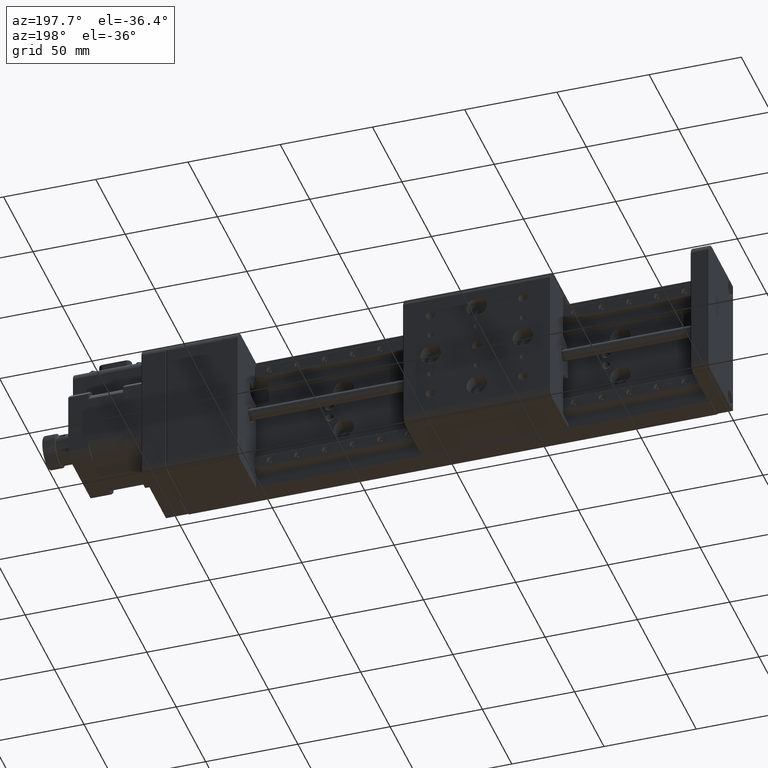
[diagram: clean part render]
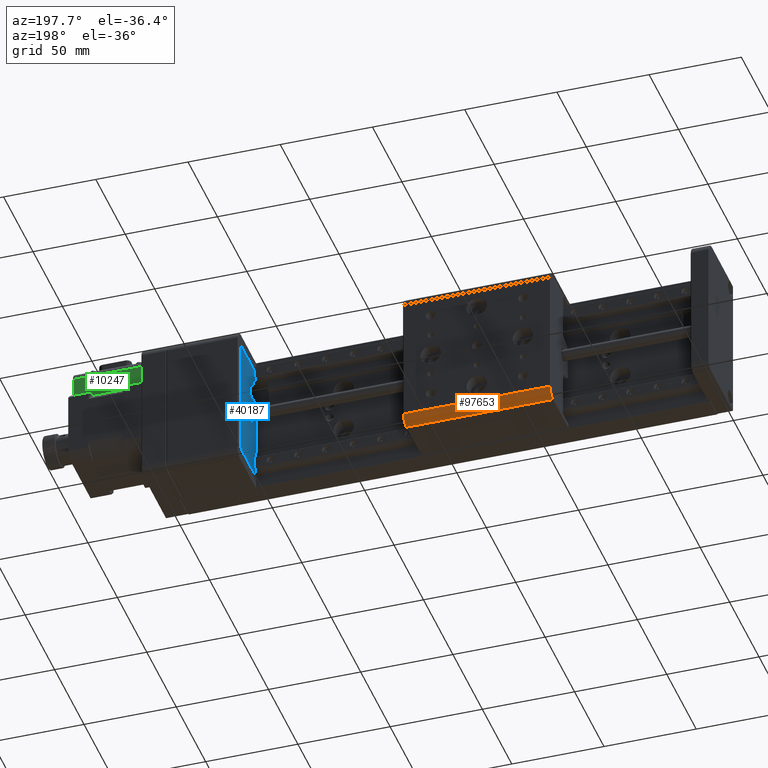
[diagram: same view with three faces highlighted in distinct colors, each labeled with its STEP entity id]
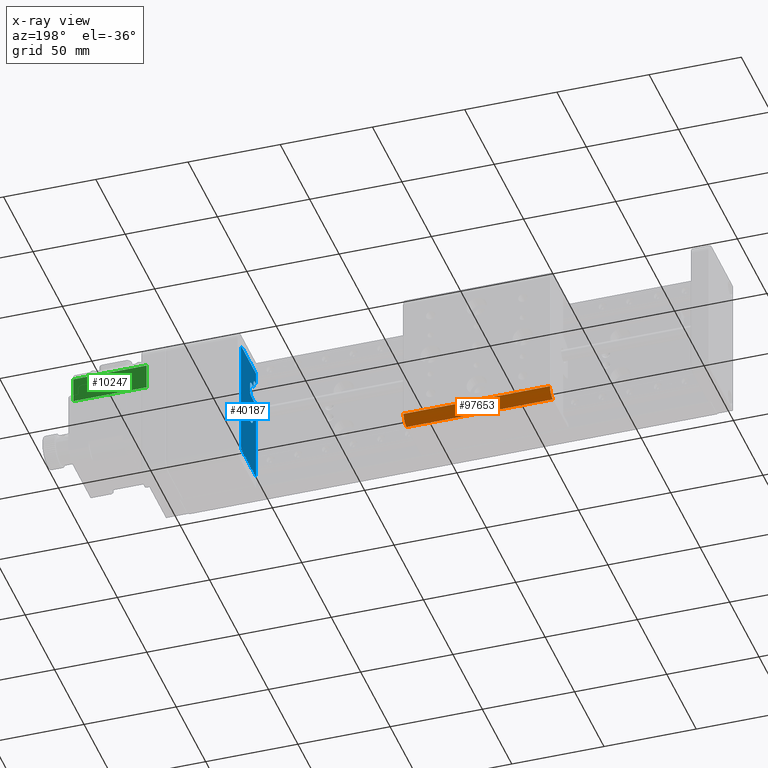
[diagram: x-ray of the same camera — body ghosted, the three highlighted faces saturated]
A machine part, auxiliary view with three faces highlighted in distinct colors.
The next image is the same camera in x-ray (body ghosted, the three faces saturated) — at least one of them is partly hidden behind the body in this view.
Their STEP definitions:

[orange] entity #97653 — the highlighted cylindrical surface (edge-blend (fillet) strip) has radius 5 mm, axis along (-1, -0, -0).
#374 = VERTEX_POINT ( 'NONE', #119018 ) ;
#8022 = CARTESIAN_POINT ( 'NONE',  ( 85.62080192617239000, 38.50000000000022000, -74.99999999999970200 ) ) ;
#19262 = EDGE_CURVE ( 'NONE', #374, #130264, #74265, .T. ) ;
#20106 = DIRECTION ( 'NONE',  ( 1.000000000000000000, 0.0000000000000000000, 0.0000000000000000000 ) ) ;
#23222 = VECTOR ( 'NONE', #128869, 1000.000000000000000 ) ;
#27548 = VECTOR ( 'NONE', #20106, 1000.000000000000000 ) ;
#31593 = DIRECTION ( 'NONE',  ( 1.000000000000000000, 0.0000000000000000000, 0.0000000000000000000 ) ) ;
#33930 = VERTEX_POINT ( 'NONE', #49349 ) ;
#34689 = ORIENTED_EDGE ( 'NONE', *, *, #130461, .T. ) ;
#37692 = CYLINDRICAL_SURFACE ( 'NONE', #108930, 4.999999999999997300 ) ;
#37864 = EDGE_CURVE ( 'NONE', #94270, #33930, #133591, .T. ) ;
#42780 = CIRCLE ( 'NONE', #118075, 4.999999999999997300 ) ;
#49349 = CARTESIAN_POINT ( 'NONE',  ( 85.62080192617239000, 43.50000000000022000, -74.99999999999970200 ) ) ;
#59646 = CARTESIAN_POINT ( 'NONE',  ( 85.32080192617236500, 38.50000000000022000, -74.99999999999970200 ) ) ;
#63565 = FACE_OUTER_BOUND ( 'NONE', #77543, .T. ) ;
#64017 = CARTESIAN_POINT ( 'NONE',  ( 165.3208019261723800, 38.50000000000022000, -79.99999999999970200 ) ) ;
#70733 = DIRECTION ( 'NONE',  ( -1.000000000000000000, -0.0000000000000000000, -0.0000000000000000000 ) ) ;
#72720 = CARTESIAN_POINT ( 'NONE',  ( 165.0208019261723700, 38.50000000000022000, -79.99999999999970200 ) ) ;
#74080 = CARTESIAN_POINT ( 'NONE',  ( 165.0208019261723700, 43.50000000000022000, -74.99999999999970200 ) ) ;
#74265 = LINE ( 'NONE', #64017, #27548 ) ;
#77049 = CARTESIAN_POINT ( 'NONE',  ( 165.0208019261723700, 38.50000000000022000, -74.99999999999970200 ) ) ;
#77543 = EDGE_LOOP ( 'NONE', ( #79490, #34689, #125054, #106625 ) ) ;
#79490 = ORIENTED_EDGE ( 'NONE', *, *, #19262, .F. ) ;
#86718 = DIRECTION ( 'NONE',  ( 0.0000000000000000000, -1.000000000000000000, 0.0000000000000000000 ) ) ;
#94270 = VERTEX_POINT ( 'NONE', #74080 ) ;
#97653 = ADVANCED_FACE ( 'NONE', ( #63565 ), #37692, .T. ) ;
#98279 = CIRCLE ( 'NONE', #114690, 4.999999999999997300 ) ;
#104011 = DIRECTION ( 'NONE',  ( 0.0000000000000000000, 1.000000000000000000, 0.0000000000000000000 ) ) ;
#106265 = CARTESIAN_POINT ( 'NONE',  ( 85.32080192617236500, 43.50000000000022000, -74.99999999999970200 ) ) ;
#106625 = ORIENTED_EDGE ( 'NONE', *, *, #135036, .T. ) ;
#108930 = AXIS2_PLACEMENT_3D ( 'NONE', #59646, #70733, #104011 ) ;
#110237 = DIRECTION ( 'NONE',  ( 0.0000000000000000000, 1.000000000000000000, 0.0000000000000000000 ) ) ;
#114690 = AXIS2_PLACEMENT_3D ( 'NONE', #8022, #31593, #86718 ) ;
#118075 = AXIS2_PLACEMENT_3D ( 'NONE', #77049, #120407, #110237 ) ;
#119018 = CARTESIAN_POINT ( 'NONE',  ( 85.62080192617239000, 38.50000000000022000, -79.99999999999970200 ) ) ;
#120407 = DIRECTION ( 'NONE',  ( -1.000000000000000000, -0.0000000000000000000, -0.0000000000000000000 ) ) ;
#125054 = ORIENTED_EDGE ( 'NONE', *, *, #37864, .F. ) ;
#128869 = DIRECTION ( 'NONE',  ( -1.000000000000000000, -0.0000000000000000000, -0.0000000000000000000 ) ) ;
#130264 = VERTEX_POINT ( 'NONE', #72720 ) ;
#130461 = EDGE_CURVE ( 'NONE', #374, #33930, #98279, .T. ) ;
#133591 = LINE ( 'NONE', #106265, #23222 ) ;
#135036 = EDGE_CURVE ( 'NONE', #94270, #130264, #42780, .T. ) ;

[blue] entity #40187 — the highlighted planar face has unit normal (1, 0, 0).
#743 = DIRECTION ( 'NONE',  ( 1.000000000000000000, 0.0000000000000000000, 0.0000000000000000000 ) ) ;
#2928 = CARTESIAN_POINT ( 'NONE',  ( 255.0000000000000000, 12.00000000000000000, -72.99999999999998600 ) ) ;
#4087 = CARTESIAN_POINT ( 'NONE',  ( 255.0000000000000000, 38.00000000000000000, -70.99999999999998600 ) ) ;
#4131 = CARTESIAN_POINT ( 'NONE',  ( 255.0000000000000000, 36.00000000000000700, -70.99999999999998600 ) ) ;
#5140 = AXIS2_PLACEMENT_3D ( 'NONE', #43305, #97387, #30809 ) ;
#6081 = CIRCLE ( 'NONE', #25579, 2.299999999999996300 ) ;
#6808 = CIRCLE ( 'NONE', #118384, 4.299999999999998000 ) ;
#7494 = EDGE_LOOP ( 'NONE', ( #137505, #13790 ) ) ;
#10109 = VERTEX_POINT ( 'NONE', #82693 ) ;
#10212 = DIRECTION ( 'NONE',  ( 0.0000000000000000000, 0.0000000000000000000, -1.000000000000000000 ) ) ;
#10641 = VECTOR ( 'NONE', #42216, 1000.000000000000000 ) ;
#12166 = ORIENTED_EDGE ( 'NONE', *, *, #101148, .T. ) ;
#13790 = ORIENTED_EDGE ( 'NONE', *, *, #26496, .T. ) ;
#14921 = DIRECTION ( 'NONE',  ( 0.0000000000000000000, 1.000000000000000000, -3.469446951953613700E-016 ) ) ;
#15143 = EDGE_CURVE ( 'NONE', #20278, #91962, #112420, .T. ) ;
#17108 = CARTESIAN_POINT ( 'NONE',  ( 255.0000000000000000, 38.00000000000000000, -72.99999999999998600 ) ) ;
#17250 = CIRCLE ( 'NONE', #5140, 2.000000000000000000 ) ;
#17642 = CARTESIAN_POINT ( 'NONE',  ( 255.0000000000000000, 20.00000000000000000, -18.69999999999999200 ) ) ;
#17825 = VERTEX_POINT ( 'NONE', #116147 ) ;
#19202 = VERTEX_POINT ( 'NONE', #139245 ) ;
#19364 = DIRECTION ( 'NONE',  ( 1.000000000000000000, 0.0000000000000000000, 0.0000000000000000000 ) ) ;
#20278 = VERTEX_POINT ( 'NONE', #102725 ) ;
#21411 = DIRECTION ( 'NONE',  ( 0.0000000000000000000, 0.0000000000000000000, 1.000000000000000000 ) ) ;
#22923 = EDGE_CURVE ( 'NONE', #28128, #39271, #6081, .T. ) ;
#24788 = VECTOR ( 'NONE', #126463, 1000.000000000000000 ) ;
#25579 = AXIS2_PLACEMENT_3D ( 'NONE', #101376, #35196, #69502 ) ;
#26190 = CARTESIAN_POINT ( 'NONE',  ( 255.0000000000000000, 12.00000000000000000, -72.99999999999998600 ) ) ;
#26476 = DIRECTION ( 'NONE',  ( 0.0000000000000000000, 0.0000000000000000000, -1.000000000000000000 ) ) ;
#26496 = EDGE_CURVE ( 'NONE', #91962, #20278, #6808, .T. ) ;
#26700 = EDGE_CURVE ( 'NONE', #10109, #77042, #118950, .T. ) ;
#27106 = VECTOR ( 'NONE', #67024, 1000.000000000000000 ) ;
#27457 = CARTESIAN_POINT ( 'NONE',  ( 255.0000000000000000, 22.30000000000000100, -39.99999999999998600 ) ) ;
#27589 = EDGE_CURVE ( 'NONE', #39271, #90864, #77060, .T. ) ;
#28128 = VERTEX_POINT ( 'NONE', #129044 ) ;
#28425 = ORIENTED_EDGE ( 'NONE', *, *, #26700, .T. ) ;
#28953 = EDGE_LOOP ( 'NONE', ( #44693, #92099, #28964, #12166, #125233, #28425, #113071, #141635, #47831, #91330, #115499, #122852, #77933, #133764, #84095 ) ) ;
#28964 = ORIENTED_EDGE ( 'NONE', *, *, #59579, .T. ) ;
#30490 = FACE_BOUND ( 'NONE', #7494, .T. ) ;
#30809 = DIRECTION ( 'NONE',  ( 0.0000000000000000000, 0.0000000000000000000, -1.000000000000000000 ) ) ;
#35196 = DIRECTION ( 'NONE',  ( 1.000000000000000000, 0.0000000000000000000, 0.0000000000000000000 ) ) ;
#35799 = AXIS2_PLACEMENT_3D ( 'NONE', #4131, #117129, #128107 ) ;
#37100 = VERTEX_POINT ( 'NONE', #126170 ) ;
#39271 = VERTEX_POINT ( 'NONE', #68539 ) ;
#40187 = ADVANCED_FACE ( 'NONE', ( #30490, #101271 ), #44202, .F. ) ;
#41293 = CARTESIAN_POINT ( 'NONE',  ( 255.0000000000000000, 24.99999999999999600, -18.69999999999999200 ) ) ;
#41946 = LINE ( 'NONE', #81015, #90251 ) ;
#42216 = DIRECTION ( 'NONE',  ( 0.0000000000000000000, -1.000000000000000000, 0.0000000000000000000 ) ) ;
#42505 = CARTESIAN_POINT ( 'NONE',  ( 255.0000000000000000, 21.50000000000000000, -44.29999999999998300 ) ) ;
#43305 = CARTESIAN_POINT ( 'NONE',  ( 255.0000000000000000, 36.00000000000000000, -8.999999999999987600 ) ) ;
#44202 = PLANE ( 'NONE',  #129294 ) ;
#44693 = ORIENTED_EDGE ( 'NONE', *, *, #49681, .T. ) ;
#45681 = VERTEX_POINT ( 'NONE', #57508 ) ;
#46573 = DIRECTION ( 'NONE',  ( 0.0000000000000000000, 0.0000000000000000000, -1.000000000000000000 ) ) ;
#47831 = ORIENTED_EDGE ( 'NONE', *, *, #52180, .T. ) ;
#48732 = EDGE_CURVE ( 'NONE', #81701, #19202, #100381, .T. ) ;
#49681 = EDGE_CURVE ( 'NONE', #130752, #111621, #137249, .T. ) ;
#49862 = CARTESIAN_POINT ( 'NONE',  ( 255.0000000000000000, 16.29999999999999400, -15.99999999999998600 ) ) ;
#50849 = CARTESIAN_POINT ( 'NONE',  ( 255.0000000000000000, 12.00000000000000000, -6.999999999999985800 ) ) ;
#51158 = VECTOR ( 'NONE', #72812, 1000.000000000000000 ) ;
#51708 = LINE ( 'NONE', #120620, #136150 ) ;
#52180 = EDGE_CURVE ( 'NONE', #75920, #73691, #79055, .T. ) ;
#53065 = VECTOR ( 'NONE', #21411, 1000.000000000000000 ) ;
#57508 = CARTESIAN_POINT ( 'NONE',  ( 255.0000000000000000, 12.00000000000000000, -13.69999999999999000 ) ) ;
#57783 = AXIS2_PLACEMENT_3D ( 'NONE', #76340, #19364, #10212 ) ;
#59579 = EDGE_CURVE ( 'NONE', #45681, #103965, #99712, .T. ) ;
#59811 = CARTESIAN_POINT ( 'NONE',  ( 255.0000000000000000, 14.00000000000000000, -15.99999999999998600 ) ) ;
#59928 = LINE ( 'NONE', #68461, #27106 ) ;
#60113 = DIRECTION ( 'NONE',  ( 0.0000000000000000000, 0.0000000000000000000, -1.000000000000000000 ) ) ;
#65818 = CARTESIAN_POINT ( 'NONE',  ( 255.0000000000000000, 12.00000000000000000, -72.99999999999998600 ) ) ;
#67024 = DIRECTION ( 'NONE',  ( 0.0000000000000000000, 1.000000000000000000, 0.0000000000000000000 ) ) ;
#68461 = CARTESIAN_POINT ( 'NONE',  ( 255.0000000000000000, 12.00000000000000000, -6.999999999999985800 ) ) ;
#68539 = CARTESIAN_POINT ( 'NONE',  ( 255.0000000000000000, 22.29999999999999400, -24.99999999999998600 ) ) ;
#69454 = EDGE_CURVE ( 'NONE', #37100, #75920, #78447, .T. ) ;
#69502 = DIRECTION ( 'NONE',  ( 0.0000000000000000000, 0.0000000000000000000, -1.000000000000000000 ) ) ;
#70655 = CARTESIAN_POINT ( 'NONE',  ( 255.0000000000000000, 22.30000000000000100, -20.99999999999998200 ) ) ;
#71685 = DIRECTION ( 'NONE',  ( 1.000000000000000000, 0.0000000000000000000, 0.0000000000000000000 ) ) ;
#72812 = DIRECTION ( 'NONE',  ( 0.0000000000000000000, 5.421010862427522200E-017, 1.000000000000000000 ) ) ;
#73123 = CARTESIAN_POINT ( 'NONE',  ( 255.0000000000000000, 21.50000000000000000, -39.99999999999998600 ) ) ;
#73691 = VERTEX_POINT ( 'NONE', #129424 ) ;
#75653 = LINE ( 'NONE', #136019, #108353 ) ;
#75833 = EDGE_CURVE ( 'NONE', #111621, #45681, #75653, .T. ) ;
#75920 = VERTEX_POINT ( 'NONE', #2928 ) ;
#76340 = CARTESIAN_POINT ( 'NONE',  ( 255.0000000000000000, 20.00000000000000000, -20.99999999999998200 ) ) ;
#77042 = VERTEX_POINT ( 'NONE', #4087 ) ;
#77060 = LINE ( 'NONE', #27457, #51158 ) ;
#77577 = CARTESIAN_POINT ( 'NONE',  ( 255.0000000000000000, 24.99999999999999600, -39.99999999999998600 ) ) ;
#77933 = ORIENTED_EDGE ( 'NONE', *, *, #82381, .T. ) ;
#78447 = LINE ( 'NONE', #26190, #24788 ) ;
#79055 = LINE ( 'NONE', #105413, #91132 ) ;
#79681 = EDGE_CURVE ( 'NONE', #19202, #130752, #41946, .T. ) ;
#80320 = CIRCLE ( 'NONE', #35799, 2.000000000000001800 ) ;
#81015 = CARTESIAN_POINT ( 'NONE',  ( 255.0000000000000000, 16.29999999999999400, -39.99999999999998600 ) ) ;
#81701 = VERTEX_POINT ( 'NONE', #17642 ) ;
#81944 = DIRECTION ( 'NONE',  ( 0.0000000000000000000, 0.0000000000000000000, 1.000000000000000000 ) ) ;
#82381 = EDGE_CURVE ( 'NONE', #90864, #81701, #97019, .T. ) ;
#82693 = CARTESIAN_POINT ( 'NONE',  ( 255.0000000000000000, 38.00000000000000000, -8.999999999999987600 ) ) ;
#82885 = EDGE_CURVE ( 'NONE', #17825, #10109, #17250, .T. ) ;
#84095 = ORIENTED_EDGE ( 'NONE', *, *, #79681, .T. ) ;
#84371 = EDGE_CURVE ( 'NONE', #73691, #28128, #51708, .T. ) ;
#84715 = DIRECTION ( 'NONE',  ( 0.0000000000000000000, 0.0000000000000000000, 1.000000000000000000 ) ) ;
#87166 = AXIS2_PLACEMENT_3D ( 'NONE', #59811, #136389, #26476 ) ;
#89712 = VECTOR ( 'NONE', #107764, 1000.000000000000000 ) ;
#90251 = VECTOR ( 'NONE', #81944, 1000.000000000000000 ) ;
#90864 = VERTEX_POINT ( 'NONE', #70655 ) ;
#91132 = VECTOR ( 'NONE', #84715, 1000.000000000000000 ) ;
#91330 = ORIENTED_EDGE ( 'NONE', *, *, #84371, .T. ) ;
#91962 = VERTEX_POINT ( 'NONE', #42505 ) ;
#92099 = ORIENTED_EDGE ( 'NONE', *, *, #75833, .T. ) ;
#92645 = AXIS2_PLACEMENT_3D ( 'NONE', #110613, #121710, #133203 ) ;
#97019 = CIRCLE ( 'NONE', #57783, 2.299999999999993200 ) ;
#97387 = DIRECTION ( 'NONE',  ( -1.000000000000000000, -0.0000000000000000000, -0.0000000000000000000 ) ) ;
#99712 = LINE ( 'NONE', #65818, #53065 ) ;
#100381 = LINE ( 'NONE', #41293, #10641 ) ;
#101148 = EDGE_CURVE ( 'NONE', #103965, #17825, #59928, .T. ) ;
#101271 = FACE_OUTER_BOUND ( 'NONE', #28953, .T. ) ;
#101376 = CARTESIAN_POINT ( 'NONE',  ( 255.0000000000000000, 20.00000000000000000, -24.99999999999998600 ) ) ;
#102725 = CARTESIAN_POINT ( 'NONE',  ( 255.0000000000000000, 21.50000000000000000, -35.69999999999998900 ) ) ;
#103965 = VERTEX_POINT ( 'NONE', #50849 ) ;
#105413 = CARTESIAN_POINT ( 'NONE',  ( 255.0000000000000000, 12.00000000000000000, -72.99999999999998600 ) ) ;
#107764 = DIRECTION ( 'NONE',  ( 0.0000000000000000000, -0.0000000000000000000, -1.000000000000000000 ) ) ;
#108353 = VECTOR ( 'NONE', #126371, 1000.000000000000000 ) ;
#110613 = CARTESIAN_POINT ( 'NONE',  ( 255.0000000000000000, 21.50000000000000000, -39.99999999999998600 ) ) ;
#111621 = VERTEX_POINT ( 'NONE', #142540 ) ;
#112420 = CIRCLE ( 'NONE', #92645, 4.299999999999998000 ) ;
#113071 = ORIENTED_EDGE ( 'NONE', *, *, #119699, .T. ) ;
#115499 = ORIENTED_EDGE ( 'NONE', *, *, #22923, .T. ) ;
#116147 = CARTESIAN_POINT ( 'NONE',  ( 255.0000000000000000, 35.99999999999999300, -6.999999999999985800 ) ) ;
#117129 = DIRECTION ( 'NONE',  ( -1.000000000000000000, -0.0000000000000000000, -0.0000000000000000000 ) ) ;
#118384 = AXIS2_PLACEMENT_3D ( 'NONE', #73123, #71685, #60113 ) ;
#118950 = LINE ( 'NONE', #17108, #89712 ) ;
#119699 = EDGE_CURVE ( 'NONE', #77042, #37100, #80320, .T. ) ;
#120620 = CARTESIAN_POINT ( 'NONE',  ( 255.0000000000000000, 25.00000000000000000, -27.29999999999998300 ) ) ;
#121710 = DIRECTION ( 'NONE',  ( 1.000000000000000000, 0.0000000000000000000, 0.0000000000000000000 ) ) ;
#122852 = ORIENTED_EDGE ( 'NONE', *, *, #27589, .T. ) ;
#125233 = ORIENTED_EDGE ( 'NONE', *, *, #82885, .T. ) ;
#126170 = CARTESIAN_POINT ( 'NONE',  ( 255.0000000000000000, 35.99999999999999300, -72.99999999999998600 ) ) ;
#126371 = DIRECTION ( 'NONE',  ( 0.0000000000000000000, -1.000000000000000000, 0.0000000000000000000 ) ) ;
#126463 = DIRECTION ( 'NONE',  ( 0.0000000000000000000, -1.000000000000000000, -0.0000000000000000000 ) ) ;
#128107 = DIRECTION ( 'NONE',  ( 0.0000000000000000000, 2.081668171172166600E-014, -1.000000000000000000 ) ) ;
#129044 = CARTESIAN_POINT ( 'NONE',  ( 255.0000000000000000, 20.00000000000000000, -27.29999999999997900 ) ) ;
#129294 = AXIS2_PLACEMENT_3D ( 'NONE', #77577, #743, #46573 ) ;
#129424 = CARTESIAN_POINT ( 'NONE',  ( 255.0000000000000000, 12.00000000000000000, -27.29999999999997600 ) ) ;
#130752 = VERTEX_POINT ( 'NONE', #49862 ) ;
#133203 = DIRECTION ( 'NONE',  ( 0.0000000000000000000, 0.0000000000000000000, -1.000000000000000000 ) ) ;
#133764 = ORIENTED_EDGE ( 'NONE', *, *, #48732, .T. ) ;
#136019 = CARTESIAN_POINT ( 'NONE',  ( 255.0000000000000000, 24.99999999999999600, -13.69999999999999000 ) ) ;
#136150 = VECTOR ( 'NONE', #14921, 1000.000000000000000 ) ;
#136389 = DIRECTION ( 'NONE',  ( 1.000000000000000000, 0.0000000000000000000, 0.0000000000000000000 ) ) ;
#137249 = CIRCLE ( 'NONE', #87166, 2.299999999999993200 ) ;
#137505 = ORIENTED_EDGE ( 'NONE', *, *, #15143, .T. ) ;
#139245 = CARTESIAN_POINT ( 'NONE',  ( 255.0000000000000000, 16.29999999999999400, -18.69999999999999200 ) ) ;
#141635 = ORIENTED_EDGE ( 'NONE', *, *, #69454, .T. ) ;
#142540 = CARTESIAN_POINT ( 'NONE',  ( 255.0000000000000000, 14.00000000000000000, -13.69999999999999400 ) ) ;

[green] entity #10247 — the highlighted planar face has unit normal (0, -1, -0).
#4516 = EDGE_CURVE ( 'NONE', #20248, #57623, #26472, .T. ) ;
#7555 = LINE ( 'NONE', #111545, #57691 ) ;
#10247 = ADVANCED_FACE ( 'NONE', ( #45608 ), #50302, .F. ) ;
#13275 = CARTESIAN_POINT ( 'NONE',  ( 307.5000000000000000, 33.50000000000000700, -19.00000000000001400 ) ) ;
#18863 = DIRECTION ( 'NONE',  ( 1.723556840907725700E-016, 1.040834085586084500E-015, -1.000000000000000000 ) ) ;
#20248 = VERTEX_POINT ( 'NONE', #91707 ) ;
#20259 = AXIS2_PLACEMENT_3D ( 'NONE', #50778, #72516, #18863 ) ;
#26472 = LINE ( 'NONE', #76122, #45614 ) ;
#39354 = EDGE_CURVE ( 'NONE', #57623, #119249, #123768, .T. ) ;
#45608 = FACE_OUTER_BOUND ( 'NONE', #81463, .T. ) ;
#45614 = VECTOR ( 'NONE', #130971, 1000.000000000000000 ) ;
#50302 = PLANE ( 'NONE',  #20259 ) ;
#50778 = CARTESIAN_POINT ( 'NONE',  ( 307.5000000000000000, 33.49999999999998600, -1.734723475976807100E-014 ) ) ;
#56916 = CARTESIAN_POINT ( 'NONE',  ( 347.3000000000000100, 33.50000000000000000, -5.000000000000011500 ) ) ;
#57623 = VERTEX_POINT ( 'NONE', #56916 ) ;
#57691 = VECTOR ( 'NONE', #68146, 1000.000000000000000 ) ;
#68037 = DIRECTION ( 'NONE',  ( 1.723556840907725900E-016, 1.040834085586084500E-015, -1.000000000000000000 ) ) ;
#68146 = DIRECTION ( 'NONE',  ( 1.723556840907725900E-016, 1.040834085586084500E-015, -1.000000000000000000 ) ) ;
#72516 = DIRECTION ( 'NONE',  ( 8.030873603863316200E-017, -1.000000000000000000, -1.040834085586084500E-015 ) ) ;
#75558 = VECTOR ( 'NONE', #68037, 1000.000000000000000 ) ;
#76122 = CARTESIAN_POINT ( 'NONE',  ( 307.5000000000000000, 33.49999999999999300, -5.000000000000018700 ) ) ;
#77398 = DIRECTION ( 'NONE',  ( -1.000000000000000000, -8.030873603863297700E-017, -1.723556840907724700E-016 ) ) ;
#78611 = ORIENTED_EDGE ( 'NONE', *, *, #39354, .T. ) ;
#80458 = ORIENTED_EDGE ( 'NONE', *, *, #4516, .T. ) ;
#81463 = EDGE_LOOP ( 'NONE', ( #80458, #78611, #134372, #102078 ) ) ;
#89488 = CARTESIAN_POINT ( 'NONE',  ( 307.5000000000000000, 33.50000000000000700, -19.00000000000001400 ) ) ;
#91707 = CARTESIAN_POINT ( 'NONE',  ( 307.5000000000000000, 33.49999999999999300, -5.000000000000018700 ) ) ;
#93437 = EDGE_CURVE ( 'NONE', #20248, #125425, #7555, .T. ) ;
#95993 = CARTESIAN_POINT ( 'NONE',  ( 347.3000000000000100, 33.50000000000001400, -19.00000000000000700 ) ) ;
#102078 = ORIENTED_EDGE ( 'NONE', *, *, #93437, .F. ) ;
#108819 = EDGE_CURVE ( 'NONE', #119249, #125425, #122230, .T. ) ;
#111545 = CARTESIAN_POINT ( 'NONE',  ( 307.5000000000000000, 33.49999999999998600, -1.734723475976807100E-014 ) ) ;
#119249 = VERTEX_POINT ( 'NONE', #95993 ) ;
#122230 = LINE ( 'NONE', #89488, #127343 ) ;
#123768 = LINE ( 'NONE', #133072, #75558 ) ;
#125425 = VERTEX_POINT ( 'NONE', #13275 ) ;
#127343 = VECTOR ( 'NONE', #77398, 1000.000000000000000 ) ;
#130971 = DIRECTION ( 'NONE',  ( 1.000000000000000000, 8.030873603863297700E-017, 1.723556840907724700E-016 ) ) ;
#133072 = CARTESIAN_POINT ( 'NONE',  ( 347.3000000000000100, 33.49999999999999300, -1.040834085586084300E-014 ) ) ;
#134372 = ORIENTED_EDGE ( 'NONE', *, *, #108819, .T. ) ;